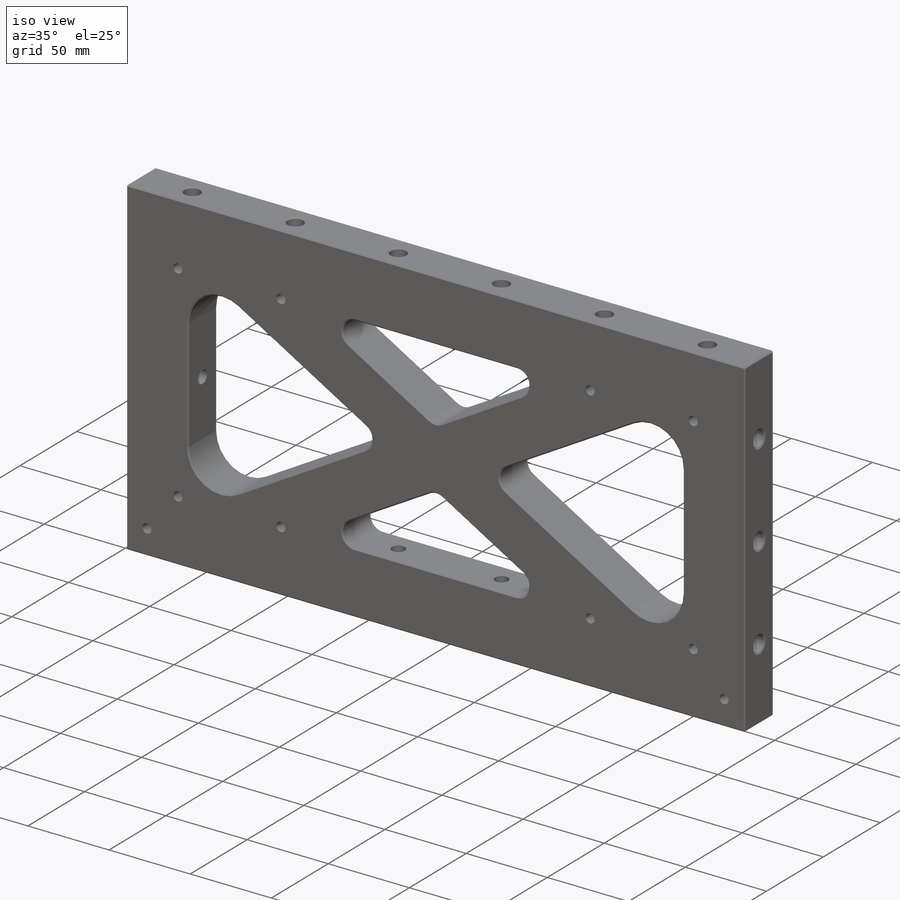
[diagram: iso view]
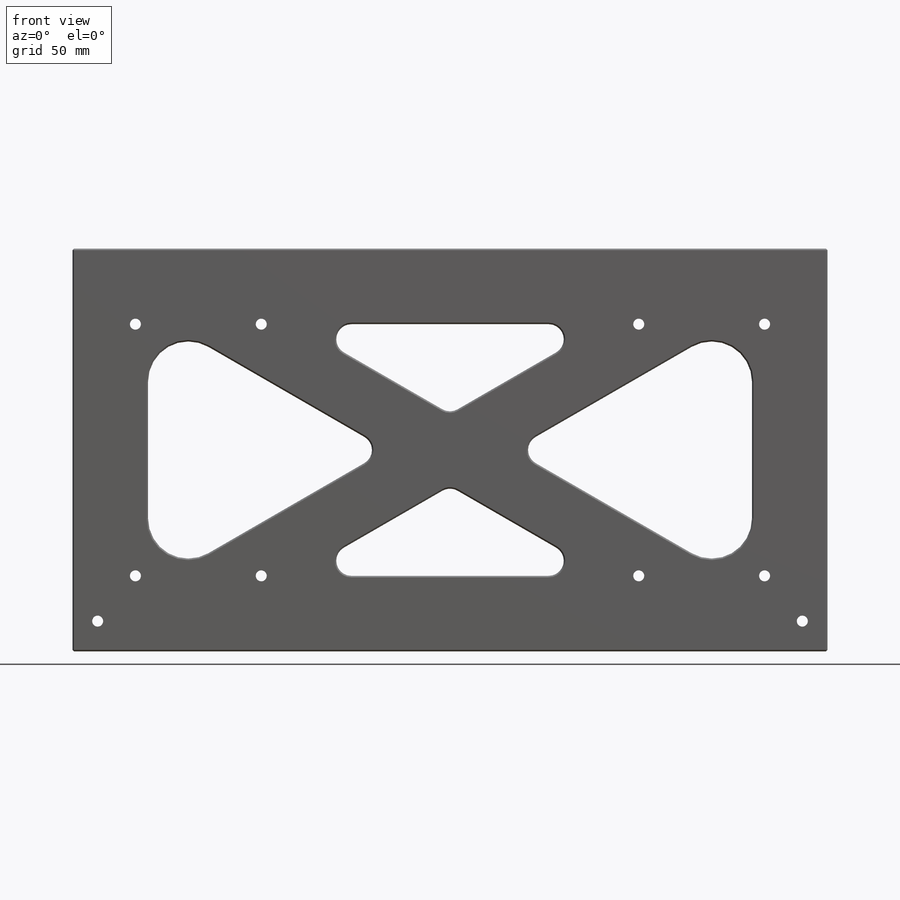
[diagram: front view]
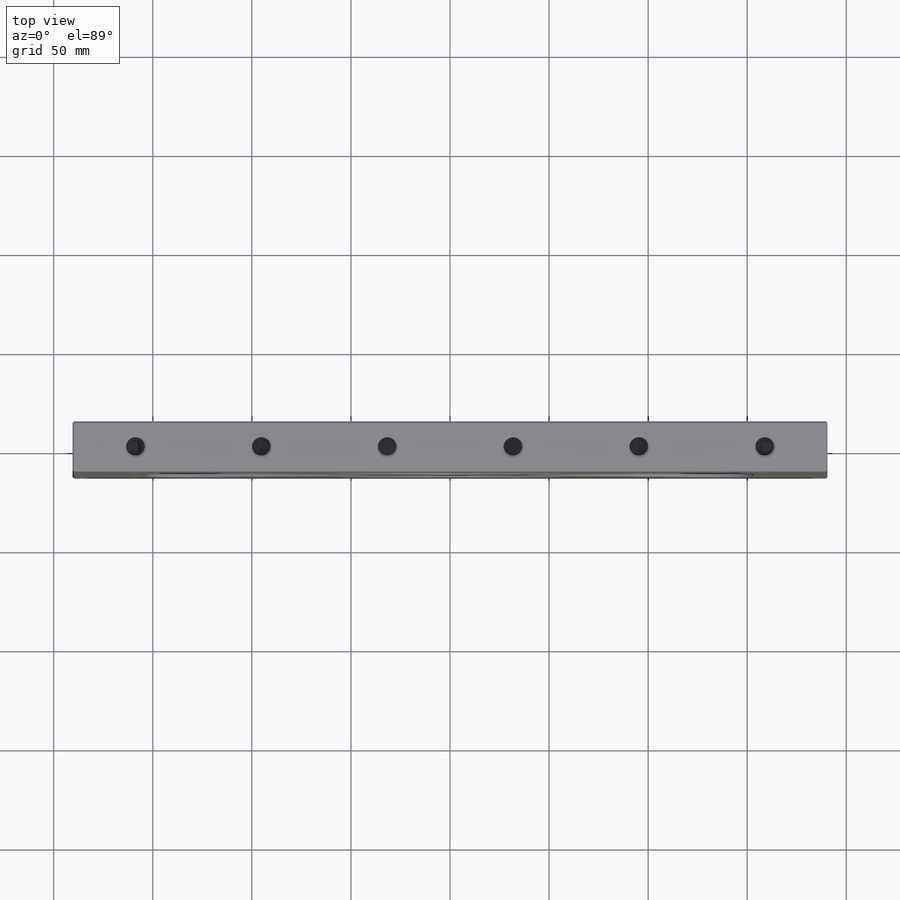
[diagram: top view]
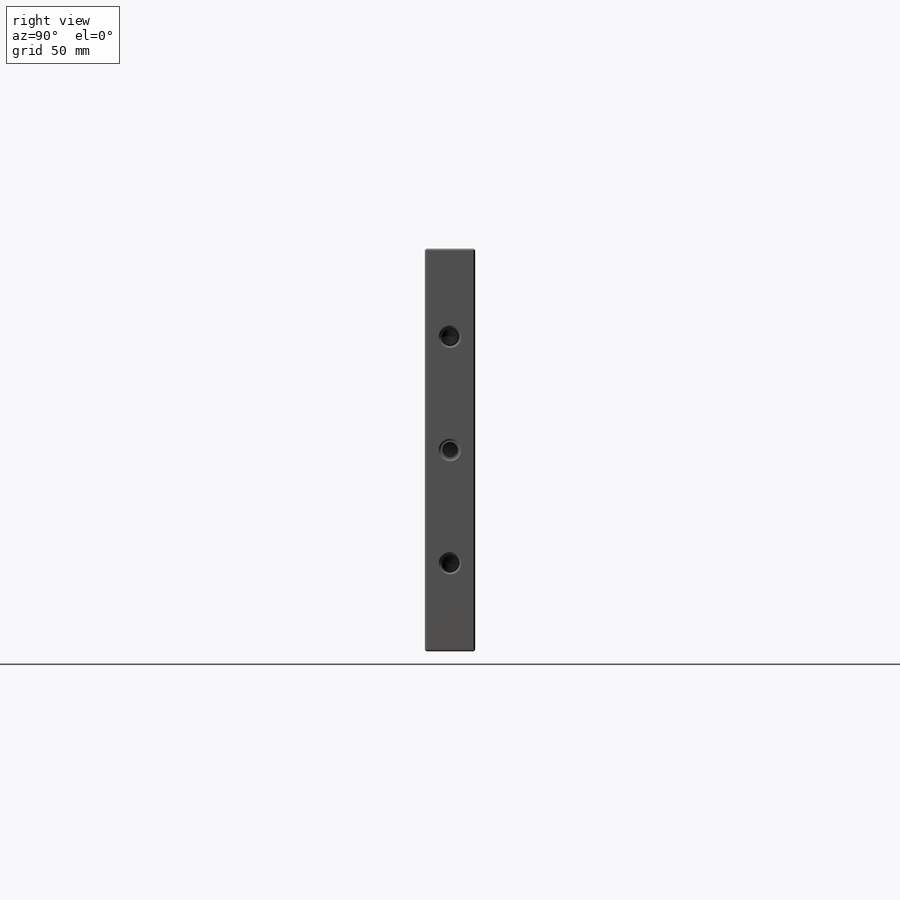
[diagram: right view]
SOLIDWORKS PART (.sldprt)
format: sldprt  version: not decoded by parser v0  size: 1,313,792 bytes
history: native  units: mm
features: sketch x43, cut_extrude x12, hole x12, extrude x7, chamfer x3, mirror x2, material x1, fillet x1 + 1 further entry (+16 scaffold rows collapsed; 2 parser-record rows omitted)
feature tree (100):
  scaffold x16  (default folders/planes/origin — collapsed)
  material  "6061-T6 Al"
  "Origin"  ID=-1
  sketch  "Sketch1"  dims[D1=203.2mm D2=381.0mm]
  extrude  "Extrude1"  Depth=25.4mm
  sketch  "Sketch22"  dims[D1=38.1mm D2=38.1mm]
  cut_extrude  "Extrude2"  [1 undecoded]
  sketch  "Sketch23"  dims[c1.D1=31.75mm c1.D2=~266.302925mm c2.D2=30.0deg]
  extrude  "Extrude3"  [1 undecoded]
  mirror  "Mirror2"
  sketch  "Sketch25"  dims[D1=20.32mm]
  extrude  "Extrude4"  [1 undecoded]
  fillet  "Fillet2"  Radius=7.62mm
  chamfer  "Chamfer1"  Distance=0.762mm Angle=45deg
  chamfer  "Chamfer2"  Distance=0.762mm Angle=45deg
  hole  "3/8-16 Tapped Hole1"  Diameter=7.9375mm Depth=44.45mm
  sketch  "Sketch7"  dims[c1.D1=28.575mm c1.D2=63.5mm c2.D1=28.575mm c2.D2=63.5mm]
  sketch  "Sketch6"  dims[hole-wizard template sketch: 27 standard entries collapsed; hole parameters kept: c8.Tap Drill Depth=44.45mm c8.Thread Major Dia.=9.525mm c8.Thread Depth=25.4mm c8.Near C'Sink Dia.=11.43mm c8.D6=~4.399409mm c8.Near C'Sink Angle=120.0deg c8.D7=~14.816244mm c8.Drill Angle=118.0deg]
  hole  "3/8-16 Tapped Hole2"  Diameter=7.9375mm Depth=44.45mm
  sketch  "Sketch49"
  sketch  "Sketch48"  dims[hole-wizard template sketch: 27 standard entries collapsed; hole parameters kept: c8.Tap Drill Depth=44.45mm c8.Thread Major Dia.=9.525mm c8.Thread Depth=25.4mm c8.Near C'Sink Dia.=11.43mm c8.D6=~4.399409mm c8.Near C'Sink Angle=120.0deg c8.D7=~14.816244mm c8.Drill Angle=118.0deg]
  hole  "3/8-16 Tapped Hole9"  Diameter=7.9375mm Depth=44.45mm
  sketch  "Sketch58"
  sketch  "Sketch57"  dims[hole-wizard template sketch: 27 standard entries collapsed; hole parameters kept: c8.Tap Drill Depth=44.45mm c8.Thread Major Dia.=9.525mm c8.Thread Depth=25.4mm c8.Near C'Sink Dia.=11.43mm c8.D6=~4.399409mm c8.Near C'Sink Angle=120.0deg c8.D7=~14.816244mm c8.Drill Angle=118.0deg]
  hole  "3/8-16 Tapped Hole3"  Diameter=7.9375mm Depth=44.45mm
  sketch  "Sketch9"
  sketch  "Sketch8"  dims[hole-wizard template sketch: 27 standard entries collapsed; hole parameters kept: c8.Tap Drill Depth=44.45mm c8.Thread Major Dia.=9.525mm c8.Thread Depth=25.4mm c8.Near C'Sink Dia.=11.43mm c8.D6=~4.399409mm c8.Near C'Sink Angle=120.0deg c8.D7=~14.816244mm c8.Drill Angle=118.0deg]
  hole  "3/8-16 Tapped Hole4"  Diameter=7.9375mm Depth=44.45mm
  sketch  "Sketch51"
  sketch  "Sketch50"  dims[hole-wizard template sketch: 27 standard entries collapsed; hole parameters kept: c8.Tap Drill Depth=44.45mm c8.Thread Major Dia.=9.525mm c8.Thread Depth=25.4mm c8.Near C'Sink Dia.=11.43mm c8.D6=~4.399409mm c8.Near C'Sink Angle=120.0deg c8.D7=~14.816244mm c8.Drill Angle=118.0deg]
  hole  "3/8-16 Tapped Hole10"  Diameter=7.9375mm Depth=44.45mm
  sketch  "Sketch60"
  sketch  "Sketch59"  dims[hole-wizard template sketch: 27 standard entries collapsed; hole parameters kept: c8.Tap Drill Depth=44.45mm c8.Thread Major Dia.=9.525mm c8.Thread Depth=25.4mm c8.Near C'Sink Dia.=11.43mm c8.D6=~4.399409mm c8.Near C'Sink Angle=120.0deg c8.D7=~14.816244mm c8.Drill Angle=118.0deg]
  hole  "7/32 (0.21875) Vent Hole1"  Diameter=5.55625mm Depth=25.4mm
  sketch  "Sketch5"  dims[c1.D1=27.94mm c1.D2=63.5mm c1.D3=28.575mm c1.D4=44.45mm c1.D5=57.15mm c2.D1=27.94mm c2.D2=27.94mm c3.D1=38.1mm c3.D2=38.1mm]
  sketch  "Sketch4"  dims[hole-wizard template sketch: 61 standard entries collapsed; hole parameters above]
  hole  "3/8-16 Tapped Hole5"  Diameter=7.9375mm Depth=38.1mm
  sketch  "Sketch19"  dims[D1=57.15mm D2=12.7mm]
  sketch  "Sketch18"  dims[hole-wizard template sketch: 27 standard entries collapsed; hole parameters kept: c8.Tap Drill Depth=38.1mm c8.Thread Major Dia.=9.525mm c8.Thread Depth=25.4mm c8.Near C'Sink Dia.=11.43mm c8.D6=~4.399409mm c8.Near C'Sink Angle=120.0deg c8.D7=~14.816244mm c8.Drill Angle=118.0deg]
  hole  "3/8-16 Tapped Hole6"  Diameter=7.9375mm Depth=33.02mm
  sketch  "Sketch53"
  sketch  "Sketch52"  dims[hole-wizard template sketch: 27 standard entries collapsed; hole parameters kept: c8.Tap Drill Depth=33.02mm c8.Thread Major Dia.=9.525mm c8.Thread Depth=25.4mm c8.Near C'Sink Dia.=11.43mm c8.D6=~4.399409mm c8.Near C'Sink Angle=120.0deg c8.D7=~14.816244mm c8.Drill Angle=118.0deg]
  hole  "3/8-16 Tapped Hole7"  Diameter=7.9375mm Depth=38.1mm
  sketch  "Sketch21"
  sketch  "Sketch20"  dims[hole-wizard template sketch: 27 standard entries collapsed; hole parameters kept: c8.Tap Drill Depth=38.1mm c8.Thread Major Dia.=9.525mm c8.Thread Depth=25.4mm c8.Near C'Sink Dia.=11.43mm c8.D6=~4.399409mm c8.Near C'Sink Angle=120.0deg c8.D7=~14.816244mm c8.Drill Angle=118.0deg]
  hole  "3/8-16 Tapped Hole8"  Diameter=7.9375mm Depth=33.02mm
  sketch  "Sketch56"
  sketch  "Sketch55"  dims[hole-wizard template sketch: 27 standard entries collapsed; hole parameters kept: c8.Tap Drill Depth=33.02mm c8.Thread Major Dia.=9.525mm c8.Thread Depth=25.4mm c8.Near C'Sink Dia.=11.43mm c8.D6=~4.399409mm c8.Near C'Sink Angle=120.0deg c8.D7=~14.816244mm c8.Drill Angle=118.0deg]
  parser-record x2  (decoder bookkeeping rows leaked as tree rows — omitted from the tree; the rows remain in map.json)
  sketch  "Sketch26"  dims[D1=0.0mm]
  cut_extrude  "Extrude5"  Depth=0.0254mm
  sketch  "Sketch27"  dims[D1=0.0mm]
  cut_extrude  "Extrude6"  Depth=0.0254mm
  sketch  "Sketch28"  dims[D1=0.0mm]
  cut_extrude  "Extrude7"  Depth=0.0254mm
  sketch  "Sketch29"  dims[D1=0.0mm]
  cut_extrude  "Extrude8"  Depth=0.0254mm
  sketch  "Sketch30"  dims[D1=25.4mm D2=38.1mm]
  extrude  "Extrude9"  Depth=0.0254mm
  sketch  "Sketch31"  dims[D1=38.1mm D2=25.4mm]
  extrude  "Extrude10"  Depth=0.0254mm
  sketch  "Sketch32"  dims[D1=25.4mm D2=31.75mm]
  extrude  "Extrude11"  Depth=0.0254mm
  sketch  "Sketch33"  dims[D1=25.4mm D2=31.75mm]
  extrude  "Extrude12"  Depth=0.0254mm
  sketch  "Sketch34"
  cut_extrude  "Extrude13"  [1 undecoded]
  mirror  "Mirror3"
  sketch  "Sketch35"
  cut_extrude  "Extrude14"  [1 undecoded]
  sketch  "Sketch36"  dims[D1=3.81mm]
  cut_extrude  "Extrude15"  [1 undecoded]
  sketch  "Sketch37"  dims[D1=3.81mm]
  cut_extrude  "Extrude16"  [1 undecoded]
  sketch  "Sketch38"  dims[D1=3.81mm]
  cut_extrude  "Extrude17"  [1 undecoded]
  sketch  "Sketch39"  dims[D1=3.81mm]
  cut_extrude  "Extrude18"  [1 undecoded]
  sketch  "Sketch45"  dims[c1.D1=3.175mm c1.D2=9.5504mm c1.D3=10.795mm c2.D1=~9.54278mm c2.D2=3.175mm c2.D3=12.7mm]
  cut_extrude  "Extrude20"  Depth=19.05mm
  chamfer  "Chamfer4"  Distance=2.286mm Angle=45deg
  hole  "7/32 (0.21875) Diameter Hole3"  Diameter=5.55625mm Depth=25.4mm
  sketch  "Sketch47"  dims[D1=12.7mm D2=15.24mm]
  sketch  "Sketch46"  dims[hole-wizard template sketch: 61 standard entries collapsed; hole parameters above]
decode coverage: 59 of 80 modeling features carry decoded parameters; 1 rows unclassified (native names shown)
note: ~ marks probable driven/reference dimensions
note: 9 parameter values undecoded
summary: Diameter pulled from absorbed wizard sketch | no parameter record found for 9 features
note: suppression state not decoded; provenance and decode notes live in map.json
